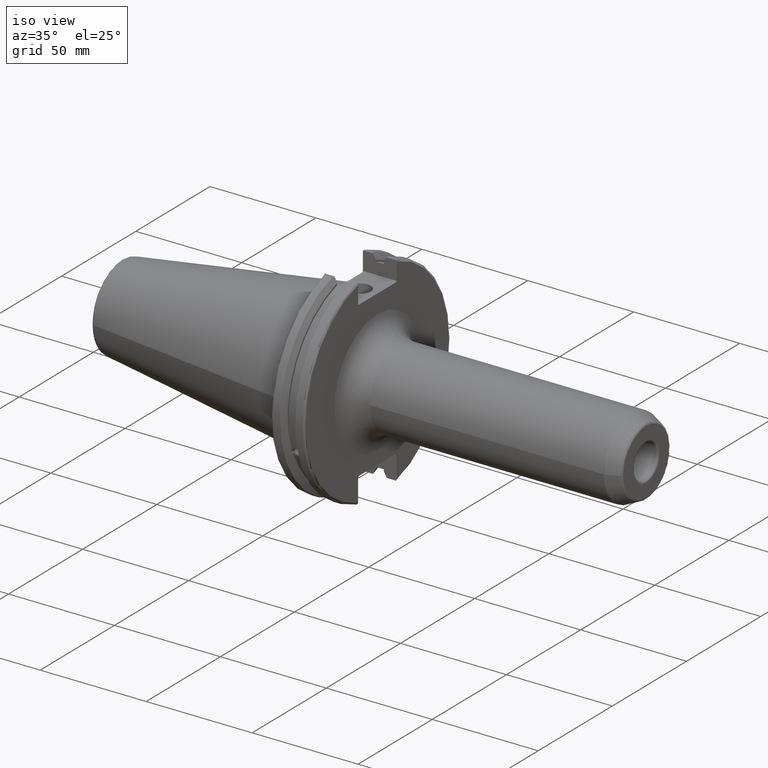
[diagram: clean part render]
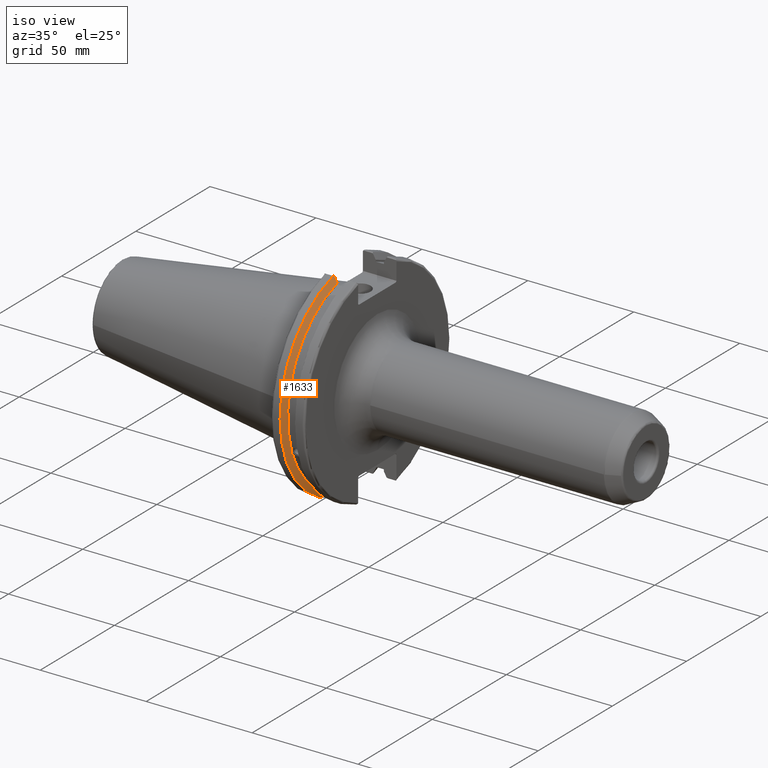
[diagram: same view with one face highlighted and labeled with its STEP entity id]
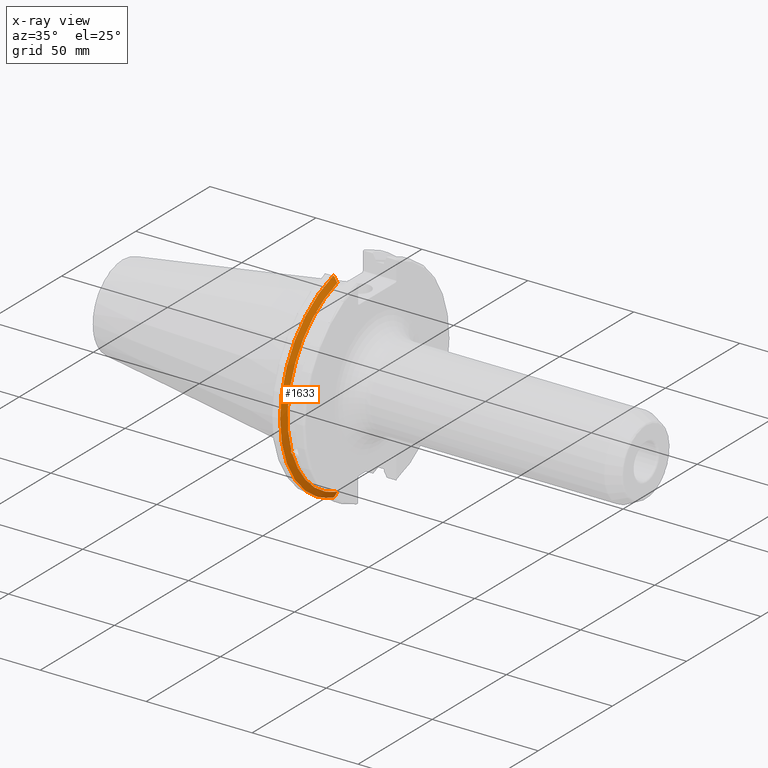
[diagram: x-ray of the same camera — body ghosted, the highlighted face saturated]
A machine part, iso view. The second image highlights one B-rep face of the part: STEP entity #1633.
The next image is the same camera in x-ray: the body ghosted, the highlighted face saturated — about 0% of this face is hidden behind the body in this view.
In plain terms, the highlighted conical surface has half-angle 60 deg.
Its self-contained STEP definition (entity closure, byte-faithful):
#25=(
BOUNDED_CURVE()
B_SPLINE_CURVE(2,(#3140,#3141,#3142),.UNSPECIFIED.,.F.,.F.)
B_SPLINE_CURVE_WITH_KNOTS((3,3),(0.,0.275823910674601),.UNSPECIFIED.)
CURVE()
GEOMETRIC_REPRESENTATION_ITEM()
RATIONAL_B_SPLINE_CURVE((1.,1.00038235573593,1.00012873636487))
REPRESENTATION_ITEM('')
);
#26=(
BOUNDED_CURVE()
B_SPLINE_CURVE(2,(#3152,#3153,#3154),.UNSPECIFIED.,.F.,.F.)
B_SPLINE_CURVE_WITH_KNOTS((3,3),(0.0558332664507492,0.331657177124507),
 .UNSPECIFIED.)
CURVE()
GEOMETRIC_REPRESENTATION_ITEM()
RATIONAL_B_SPLINE_CURVE((1.00012873636807,1.00038235574544,1.))
REPRESENTATION_ITEM('')
);
#27=(
BOUNDED_CURVE()
B_SPLINE_CURVE(2,(#3187,#3188,#3189),.UNSPECIFIED.,.F.,.F.)
B_SPLINE_CURVE_WITH_KNOTS((3,3),(0.,0.0648240472897372),.UNSPECIFIED.)
CURVE()
GEOMETRIC_REPRESENTATION_ITEM()
RATIONAL_B_SPLINE_CURVE((1.,1.00011477674836,1.00019140645948))
REPRESENTATION_ITEM('')
);
#28=(
BOUNDED_CURVE()
B_SPLINE_CURVE(2,(#3195,#3196,#3197),.UNSPECIFIED.,.F.,.F.)
B_SPLINE_CURVE_WITH_KNOTS((3,3),(0.325260944932348,0.390084992222201),
 .UNSPECIFIED.)
CURVE()
GEOMETRIC_REPRESENTATION_ITEM()
RATIONAL_B_SPLINE_CURVE((1.00019140645916,1.00011477674817,1.))
REPRESENTATION_ITEM('')
);
#78=CONICAL_SURFACE('',#1827,47.8172386482472,1.0471975511966);
#202=FACE_OUTER_BOUND('',#312,.T.);
#312=EDGE_LOOP('',(#1500,#1501,#1502,#1503,#1504,#1505,#1506,#1507));
#547=CIRCLE('',#1726,46.4219772964944);
#573=CIRCLE('',#1781,49.2125);
#589=CIRCLE('',#1828,46.4219772964944);
#608=B_SPLINE_CURVE_WITH_KNOTS('',3,(#2669,#2670,#2671,#2672,#2673,#2674,
#2675,#2676,#2677,#2678,#2679,#2680,#2681,#2682),.UNSPECIFIED.,.F.,.F.,
(4,2,2,2,2,2,4),(0.426712868358719,0.441644498666906,0.48031331322313,0.518982127779354,
0.557650942335578,0.596319756891801,0.611251387199988),.UNSPECIFIED.);
#689=VERTEX_POINT('',#2666);
#690=VERTEX_POINT('',#2668);
#707=VERTEX_POINT('',#2758);
#769=VERTEX_POINT('',#3137);
#770=VERTEX_POINT('',#3139);
#773=VERTEX_POINT('',#3151);
#777=VERTEX_POINT('',#3185);
#778=VERTEX_POINT('',#3191);
#867=EDGE_CURVE('',#690,#689,#608,.T.);
#890=EDGE_CURVE('',#690,#707,#547,.T.);
#976=EDGE_CURVE('',#770,#769,#25,.T.);
#982=EDGE_CURVE('',#773,#707,#26,.T.);
#990=EDGE_CURVE('',#777,#769,#27,.T.);
#992=EDGE_CURVE('',#777,#778,#573,.T.);
#993=EDGE_CURVE('',#773,#778,#28,.T.);
#1035=EDGE_CURVE('',#770,#689,#589,.T.);
#1500=ORIENTED_EDGE('',*,*,#867,.T.);
#1501=ORIENTED_EDGE('',*,*,#1035,.F.);
#1502=ORIENTED_EDGE('',*,*,#976,.T.);
#1503=ORIENTED_EDGE('',*,*,#990,.F.);
#1504=ORIENTED_EDGE('',*,*,#992,.T.);
#1505=ORIENTED_EDGE('',*,*,#993,.F.);
#1506=ORIENTED_EDGE('',*,*,#982,.T.);
#1507=ORIENTED_EDGE('',*,*,#890,.F.);
#1633=ADVANCED_FACE('',(#202),#78,.T.);
#1726=AXIS2_PLACEMENT_3D('',#2759,#2000,#2001);
#1781=AXIS2_PLACEMENT_3D('',#3193,#2154,#2155);
#1827=AXIS2_PLACEMENT_3D('',#3309,#2267,#2268);
#1828=AXIS2_PLACEMENT_3D('',#3310,#2269,#2270);
#2000=DIRECTION('center_axis',(1.,0.,0.));
#2001=DIRECTION('ref_axis',(0.,0.,-1.));
#2154=DIRECTION('center_axis',(1.,0.,0.));
#2155=DIRECTION('ref_axis',(0.,0.,-1.));
#2267=DIRECTION('center_axis',(-1.,0.,0.));
#2268=DIRECTION('ref_axis',(0.,-1.,-1.22464679914735E-16));
#2269=DIRECTION('center_axis',(1.,0.,0.));
#2270=DIRECTION('ref_axis',(0.,0.,-1.));
#2666=CARTESIAN_POINT('',(9.2191,-43.9096390749305,-15.0646464421033));
#2668=CARTESIAN_POINT('',(9.2191,-43.3201030900029,-16.684383248648));
#2669=CARTESIAN_POINT('Ctrl Pts',(9.21910000000001,-43.3201030900029,-16.6843832486479));
#2670=CARTESIAN_POINT('Ctrl Pts',(9.20211843903392,-43.3613106941341,-16.6592273018006));
#2671=CARTESIAN_POINT('Ctrl Pts',(9.18608675403322,-43.4012416983557,-16.6326763251437));
#2672=CARTESIAN_POINT('Ctrl Pts',(9.13238673845037,-43.5391037343221,-16.5325130832406));
#2673=CARTESIAN_POINT('Ctrl Pts',(9.09621610663556,-43.6406982153491,-16.441180795372));
#2674=CARTESIAN_POINT('Ctrl Pts',(9.04690868251975,-43.8110833825827,-16.2291323464527));
#2675=CARTESIAN_POINT('Ctrl Pts',(9.0341,-43.8794096049168,-16.10796730316));
#2676=CARTESIAN_POINT('Ctrl Pts',(9.0341,-43.9675796948952,-15.8657219718732));
#2677=CARTESIAN_POINT('Ctrl Pts',(9.04690868251975,-43.9931221605126,-15.7289849146254));
#2678=CARTESIAN_POINT('Ctrl Pts',(9.09621610663556,-43.9989016655819,-15.4570249042867));
#2679=CARTESIAN_POINT('Ctrl Pts',(9.13238673845037,-43.9797830409458,-15.3217566390708));
#2680=CARTESIAN_POINT('Ctrl Pts',(9.18608675403322,-43.9385582852181,-15.1564111356409));
#2681=CARTESIAN_POINT('Ctrl Pts',(9.20211843903392,-43.9250360001461,-15.1104047527575));
#2682=CARTESIAN_POINT('Ctrl Pts',(9.2191,-43.9096390749305,-15.0646464421033));
#2758=CARTESIAN_POINT('',(9.2191,-12.95,-44.5791147973604));
#2759=CARTESIAN_POINT('Origin',(9.2191,0.,0.));
#3137=CARTESIAN_POINT('',(7.88638960562424,-12.95,46.9780755322918));
#3139=CARTESIAN_POINT('',(9.2191,-12.95,44.5791147973604));
#3140=CARTESIAN_POINT('Ctrl Pts',(9.2191,-12.95,44.5791147973604));
#3141=CARTESIAN_POINT('Ctrl Pts',(8.57020449055857,-12.95,45.7494966802148));
#3142=CARTESIAN_POINT('Ctrl Pts',(7.88638960562424,-12.95,46.9780755322918));
#3151=CARTESIAN_POINT('',(7.88638960562425,-12.95,-46.9780755322918));
#3152=CARTESIAN_POINT('Ctrl Pts',(7.88638960562425,-12.95,-46.9780755322918));
#3153=CARTESIAN_POINT('Ctrl Pts',(8.57020449054166,-12.95,-45.7494966802452));
#3154=CARTESIAN_POINT('Ctrl Pts',(9.2191,-12.95,-44.5791147973604));
#3185=CARTESIAN_POINT('',(7.60799096595127,-13.4317035994433,47.3440544806494));
#3187=CARTESIAN_POINT('Ctrl Pts',(7.60799096595126,-13.4317035994433,47.3440544806494));
#3188=CARTESIAN_POINT('Ctrl Pts',(7.7482689666382,-13.1896660169966,47.1601640966265));
#3189=CARTESIAN_POINT('Ctrl Pts',(7.88638960562424,-12.95,46.9780755322918));
#3191=CARTESIAN_POINT('',(7.60799096595127,-13.4317035994433,-47.3440544806494));
#3193=CARTESIAN_POINT('Origin',(7.60799096595127,0.,0.));
#3195=CARTESIAN_POINT('Ctrl Pts',(7.88638960562425,-12.95,-46.9780755322918));
#3196=CARTESIAN_POINT('Ctrl Pts',(7.74826896663813,-13.1896660169967,-47.1601640966265));
#3197=CARTESIAN_POINT('Ctrl Pts',(7.60799096595127,-13.4317035994434,-47.3440544806494));
#3309=CARTESIAN_POINT('Origin',(8.41354548297563,0.,0.));
#3310=CARTESIAN_POINT('Origin',(9.2191,0.,0.));